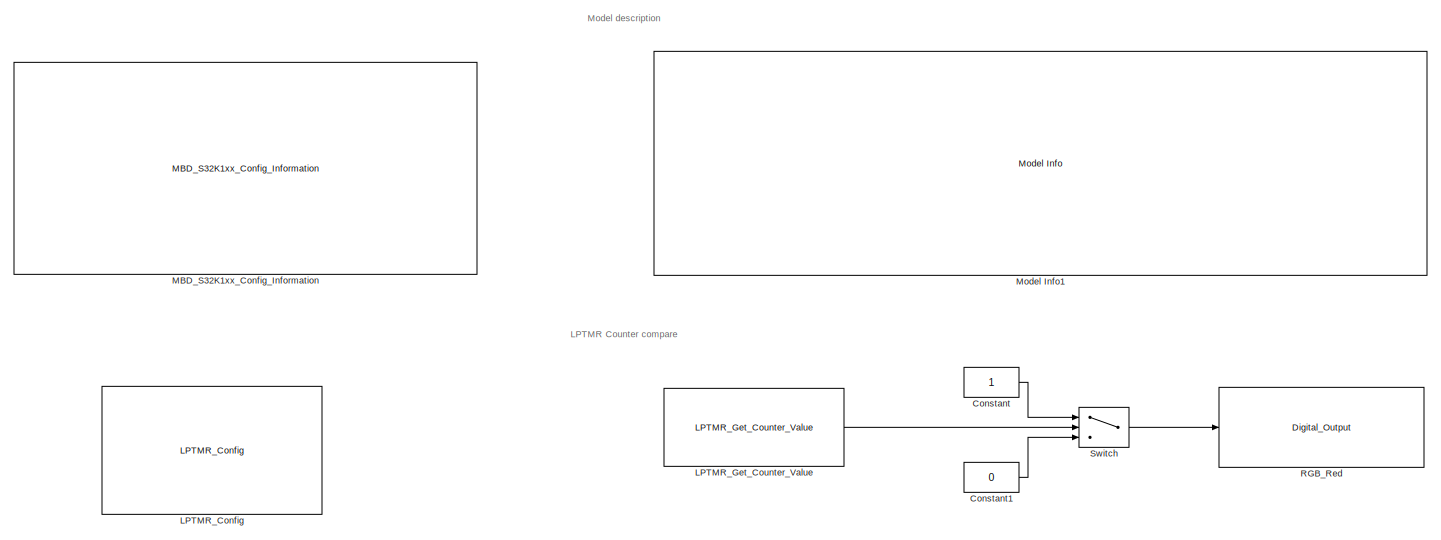
[diagram: root canvas - part 1/2, full width, middle band]
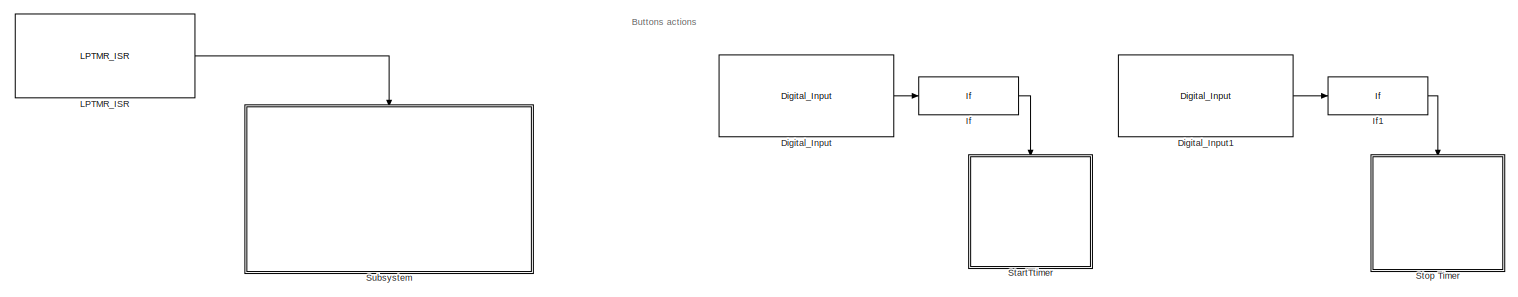
[diagram: root canvas - part 2/2, full width, bottom band]
MODEL lptmr_complex_time_counter_s32k11x
KIND model
CONFIG InitFcn = mbd_s32k_consistency_checks(bdroot(gcs));
BLOCK [Constant] Constant
  OutDataTypeStr = boolean
  SID = 15
BLOCK [Constant] Constant1
  OutDataTypeStr = boolean
  SID = 16
  Value = 0
BLOCK [Reference] Digital_Input  REF=mbd_s32k1xx_ec_toolbox/GPIO Blocks/Digital_Input
  Ports = [0, 1]
  SID = 58
  SourceBlock = mbd_s32k1xx_ec_toolbox/GPIO Blocks/Digital_Input
  SourceType = gpio_s32k_input
  gpio_pin = PTD3: [PTD3 | Port D I/O]
  passive_filter = off
  pull_resistor = None
BLOCK [Reference] Digital_Input1  REF=mbd_s32k1xx_ec_toolbox/GPIO Blocks/Digital_Input
  Ports = [0, 1]
  SID = 59
  SourceBlock = mbd_s32k1xx_ec_toolbox/GPIO Blocks/Digital_Input
  SourceType = gpio_s32k_input
  gpio_pin = PTD5: [PTD5 | Port D I/O]
  passive_filter = off
  pull_resistor = None
BLOCK [If] If
  IfExpression = u1 == 1
  Ports = [1, 1]
  SID = 19
  ShowElse = off
BLOCK [If] If1
  IfExpression = u1 == 1
  Ports = [1, 1]
  SID = 20
  ShowElse = off
BLOCK [Reference] LPTMR_Config  REF=mbd_s32k1xx_ec_toolbox/Core and System Blocks/LPTMR Blocks/LPTMR_Config
  Ports = []
  SID = 2
  SourceBlock = mbd_s32k1xx_ec_toolbox/Core and System Blocks/LPTMR Blocks/LPTMR_Config
  SourceType = lptmr_s32k_config
  bypass_prescaler = off
  compare_value = 1000000
  compare_value_units = Microseconds
  enable_isr = on
  free_run = off
  input_clock = SIRC DIV2 clock
  pin_gpio = PTE11: [LPTMR0_ALT1 | Low Power Timer Input Channel]
  pin_polarity = Count pulse on rising edge
  pin_select = Count pulses from pin alternative 2
  pin_trgmux_source = Trigger function is disabled
  prescaler = Timer mode: prescaler 2, Glitch filter mode: invalid
  show_adv_opts = on
  start_counter = on
  work_mode = Time Counter mode
BLOCK [Reference] LPTMR_Get_Counter_Value  REF=mbd_s32k1xx_ec_toolbox/Core and System Blocks/LPTMR Blocks/LPTMR_Get_Counter_Value
  Ports = [0, 1]
  SID = 56
  SourceBlock = mbd_s32k1xx_ec_toolbox/Core and System Blocks/LPTMR Blocks/LPTMR_Get_Counter_Value
  SourceType = lptmr_s32k_get_counter
BLOCK [Reference] LPTMR_ISR  REF=mbd_s32k1xx_ec_toolbox/Core and System Blocks/LPTMR Blocks/LPTMR_ISR
  Ports = [0, 1]
  SID = 3
  SourceBlock = mbd_s32k1xx_ec_toolbox/Core and System Blocks/LPTMR Blocks/LPTMR_ISR
  SourceType = lptmr_s32k_isr
BLOCK [Reference] MBD_S32K1xx_Config_Information  REF=mbd_s32k1xx_ec_toolbox/MBD_S32K1xx_Config_Information
  ADC_PcrCheckEnDis = on
  AMMCLIB_PcrCheckEnDis = on
  CMP_PcrCheckEnDis = on
  CSEc_PcrCheckEnDis = on
  ConfigParams_PcrCheckEnDis = on
  FM_PcrCheckEnDis = on
  FTM_Dual_Edge_Inputs_PcrCheckEnDis = on
  FTM_Hall_Sensor_Inputs_PcrCheckEnDis = on
  FTM_Input_Edge_Inputs_PcrCheckEnDis = on
  FTM_PWM_PcrCheckEnDis = on
  FTM_Quadrature_Inputs_PcrCheckEnDis = on
  FlexCAN_PcrCheckEnDis = on
  FlexIO_PcrCheckEnDis = on
  GPIO_InputPcrCheckEnDis = on
  GPIO_OutputPcrCheckEnDis = on
  LIN_PcrCheckEnDis = on
  LPI2C_PcrCheckEnDis = on
  LPSPI_PcrCheckEnDis = on
  LPTMR_PcrCheckEnDis = on
  LPUART_PcrCheckEnDis = on
  ModelRef_PcrCheckEnDis = on
  PDB0_PcrCheckEnDis = on
  PIT_PcrCheckEnDis = on
  Ports = []
  Profile_PcrCheckEnDis = on
  RTC_PcrCheckEnDis = on
  SBC_PcrCheckEnDis = on
  SID = 64
  SourceBlock = mbd_s32k1xx_ec_toolbox/MBD_S32K1xx_Config_Information
  SourceType = MBDTBX_EC_S32K
  WDOG_PcrCheckEnDis = on
  config_params = []
  disp_str = Target : S32K144-64KB_SRAM\nPackage : 100-pin\nSystem clock : 80 MHz\nXTAL clock : External 8 MHz\nCompiler : IAR\nTarget Type : FLASH\nDownload Code after build : off\nStep Tick Interrupt Priority : 15
  ds_import_enable = on
  eDMA_PcrCheckEnDis = on
  gcc_target_assemble_opts = -mcpu=cortex-m0plus -mthumb -g
  gcc_target_compile_opts = -mcpu=cortex-m0plus -mthumb -O1 -g -gstrict-dwarf
  gcc_target_default_lcf = on
  gcc_target_link_opts = -mcpu=cortex-m0plus -mthumb
  gcc_target_user_lcf = S32K116_17_flash.ld
  ghs_target_assemble_opts = -mcpu=cortexm0plus -mthumb -fsoft --gnu_asm
  ghs_target_compile_opts = -mcpu=cortexm0plus -mthumb -fsoft -Ogeneral -Wundef -Wimplicit-int -Wshadow -Wtrigraphs --no_commons --gnu_asm -gnu99 -gdwarf-2 -G
  ghs_target_default_lcf = on
  ghs_target_link_opts = -mcpu=cortexm0plus -mthumb -fsoft
  ghs_target_user_lcf = S32K116_17_flash.ld
  iar_target_assemble_opts = --thumb
  iar_target_compile_opts = --thumb -Ol -e --debug --dlib_config normal
  iar_target_default_lcf = on
  iar_target_link_opts = --no_exceptions --vfe --inline
  iar_target_user_lcf = S32K116_17_flash.icf
  mbdt_ver = 0
  mcu_steptick_prio = 3
  mcu_steptick_timer = LPIT Channel 0
  mcu_system_clock_freq = 40
  mcu_target_name = S32K116
  mcu_target_package = 48-LQFP
  mcu_target_sram_size = 17KB
  mcu_xtal_freq = External 40
  pil_download_enable = off
  pil_download_rate = 57600
  pil_opensda_drive = Custom
  pil_opensda_drive_custom = D
  pil_uart_instance = 0
  pil_uart_rx = PTA2: [LPUART0_RX | Receive]
  pil_uart_tx = PTA3: [LPUART0_TX | Transmit]
  rbl_com_port = Custom
  rbl_com_port_custom = COM1
  rbl_download_enable = on
  rbl_download_interface = OpenSDA
  rbl_restart_request = off
  rbl_start_delay = 5000
  target_compiler = GCC
  target_memory = FLASH
BLOCK [Reference] Model Info1  REF=simulink/Model-Wide\nUtilities/Model Info
  DisplayStringWithTags = Model Name: %<ModelName>\n\nDescription: %<Description>
  Frame = off
  HorizontalTextAlignment = Left
  LeftAlignmentValue = 0.02
  MaskDisplayString = Model Name: lptmr_complex_time_counter_s32k11x\\n\\nDescription: This model demonstrates the \"Low Power Timer\" functionality by setting the peripheral to work in Time counter mode and using most of the LPTMR blocks. \\n\\nValidation: When the processor boots up, it configures the LPTMR timer to Time Counter mode at an initial time period  of 1 sec and also enables the ISR. At every LPTMR\\n inte...<+430ch>
  Ports = []
  SID = 23
  SourceBlock = simulink/Model-Wide\nUtilities/Model Info
  SourceProductBaseCode = SL
  SourceProductName = Simulink
  SourceType = CMBlock
BLOCK [Reference] RGB_Red  REF=mbd_s32k1xx_ec_toolbox/GPIO Blocks/Digital_Output
  Ports = [1]
  SID = 57
  SourceBlock = mbd_s32k1xx_ec_toolbox/GPIO Blocks/Digital_Output
  SourceType = gpio_s32k_output
  drive_strength = Low
  gpio_pin = PTD16: [PTD16 | Port D I/O]
  init_val = Low
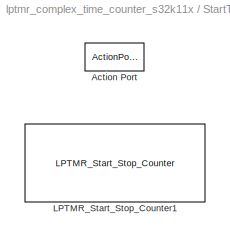
BLOCK [SubSystem] StartTtimer
  Ports = [0, 0, 0, 0, 0, 0, 0, 1]
  RTWSystemCode = Inline
  RequestExecContextInheritance = off
  SID = 24
  Variant = off
BLOCK [ActionPort] StartTtimer/Action Port
  SID = 25
BLOCK [Reference] StartTtimer/LPTMR_Start_Stop_Counter1  REF=mbd_s32k1xx_ec_toolbox/Core and System Blocks/LPTMR Blocks/LPTMR_Start_Stop_Counter
  Ports = []
  SID = 60
  SourceBlock = mbd_s32k1xx_ec_toolbox/Core and System Blocks/LPTMR Blocks/LPTMR_Start_Stop_Counter
  SourceType = lptmr_s32k_start_stop
  set_action = Start
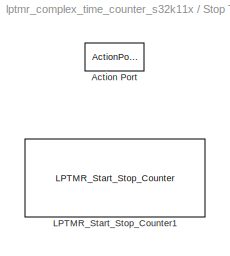
BLOCK [SubSystem] Stop Timer
  Ports = [0, 0, 0, 0, 0, 0, 0, 1]
  RTWSystemCode = Inline
  RequestExecContextInheritance = off
  SID = 27
  Variant = off
BLOCK [ActionPort] Stop Timer/Action Port
  SID = 28
BLOCK [Reference] Stop Timer/LPTMR_Start_Stop_Counter1  REF=mbd_s32k1xx_ec_toolbox/Core and System Blocks/LPTMR Blocks/LPTMR_Start_Stop_Counter
  Ports = []
  SID = 61
  SourceBlock = mbd_s32k1xx_ec_toolbox/Core and System Blocks/LPTMR Blocks/LPTMR_Start_Stop_Counter
  SourceType = lptmr_s32k_start_stop
  set_action = Stop
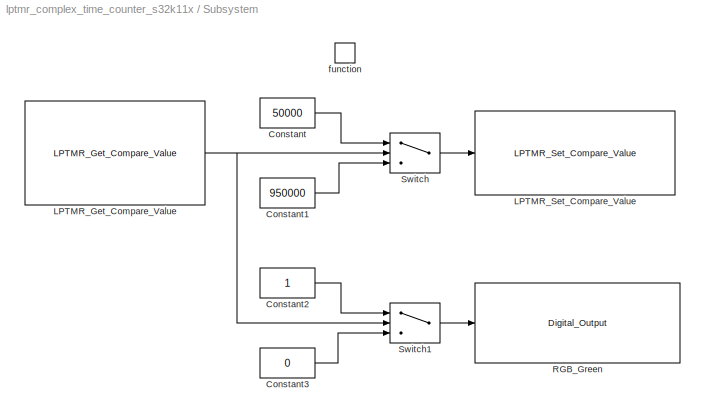
BLOCK [SubSystem] Subsystem
  Ports = [0, 0, 0, 1]
  RequestExecContextInheritance = off
  SID = 4
  Variant = off
BLOCK [Constant] Subsystem/Constant
  OutDataTypeStr = uint32
  SID = 6
  Value = 50000
BLOCK [Constant] Subsystem/Constant1
  OutDataTypeStr = uint32
  SID = 7
  Value = 950000
BLOCK [Constant] Subsystem/Constant2
  OutDataTypeStr = boolean
  SID = 8
BLOCK [Constant] Subsystem/Constant3
  OutDataTypeStr = boolean
  SID = 9
  Value = 0
BLOCK [Reference] Subsystem/LPTMR_Get_Compare_Value  REF=mbd_s32k1xx_ec_toolbox/Core and System Blocks/LPTMR Blocks/LPTMR_Get_Compare_Value
  Ports = [0, 1]
  Priority = 1
  SID = 34
  SourceBlock = mbd_s32k1xx_ec_toolbox/Core and System Blocks/LPTMR Blocks/LPTMR_Get_Compare_Value
  SourceType = lptmr_s32k_get_compare
  compare_value_units = Microseconds
BLOCK [Reference] Subsystem/LPTMR_Set_Compare_Value  REF=mbd_s32k1xx_ec_toolbox/Core and System Blocks/LPTMR Blocks/LPTMR_Set_Compare_Value
  Ports = [1]
  Priority = 9
  SID = 54
  SourceBlock = mbd_s32k1xx_ec_toolbox/Core and System Blocks/LPTMR Blocks/LPTMR_Set_Compare_Value
  SourceType = lptmr_s32k_set_compare
  compare_value_units = Microseconds
BLOCK [Reference] Subsystem/RGB_Green  REF=mbd_s32k1xx_ec_toolbox/GPIO Blocks/Digital_Output
  Ports = [1]
  Priority = 3
  SID = 55
  SourceBlock = mbd_s32k1xx_ec_toolbox/GPIO Blocks/Digital_Output
  SourceType = gpio_s32k_output
  drive_strength = Low
  gpio_pin = PTD15: [PTD15 | Port D I/O]
  init_val = Low
BLOCK [Switch] Subsystem/Switch
  InputSameDT = off
  Priority = 5
  SID = 13
  SaturateOnIntegerOverflow = off
  Threshold = 950000
BLOCK [Switch] Subsystem/Switch1
  InputSameDT = off
  SID = 14
  SaturateOnIntegerOverflow = off
  Threshold = 950000
BLOCK [TriggerPort] Subsystem/function
  Ports = []
  SID = 5
  StatesWhenEnabling = held
  TriggerType = function-call
  VariantControl = Variant
BLOCK [Switch] Switch
  InputSameDT = off
  SID = 30
  SaturateOnIntegerOverflow = off
  Threshold = 55000
ANNOTATION (root): Buttons actions
ANNOTATION (root): LPTMR Counter compare
ANNOTATION (root): Model description
LINE Constant1:1 -> Switch:3
LINE Constant:1 -> Switch:1
LINE Digital_Input1:1 -> If1:1
LINE Digital_Input:1 -> If:1
LINE If1:1 -> Stop Timer:ifaction
LINE If:1 -> StartTtimer:ifaction
LINE LPTMR_Get_Counter_Value:1 -> Switch:2
LINE LPTMR_ISR:1 -> Subsystem:trigger
LINE Subsystem/Constant1:1 -> Subsystem/Switch:3
LINE Subsystem/Constant2:1 -> Subsystem/Switch1:1
LINE Subsystem/Constant3:1 -> Subsystem/Switch1:3
LINE Subsystem/Constant:1 -> Subsystem/Switch:1
NET Subsystem/LPTMR_Get_Compare_Value:1 -> Subsystem/Switch1:2, Subsystem/Switch:2
LINE Subsystem/Switch1:1 -> Subsystem/RGB_Green:1
LINE Subsystem/Switch:1 -> Subsystem/LPTMR_Set_Compare_Value:1
LINE Switch:1 -> RGB_Red:1
note: NET lines group one-source signal fan-out (src -> all destinations, sorted); 1:1 wires keep LINE
